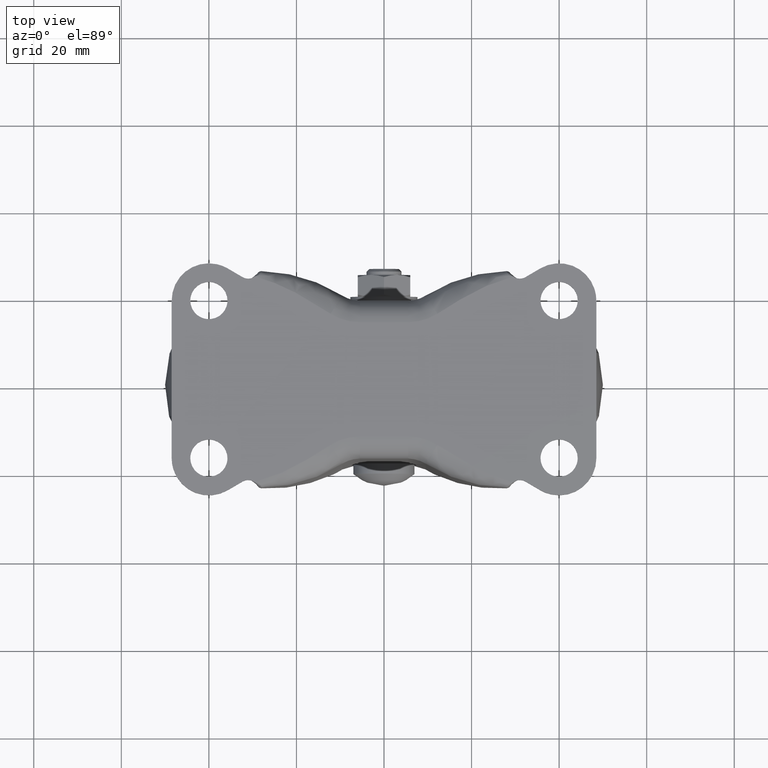
[diagram: clean part render]
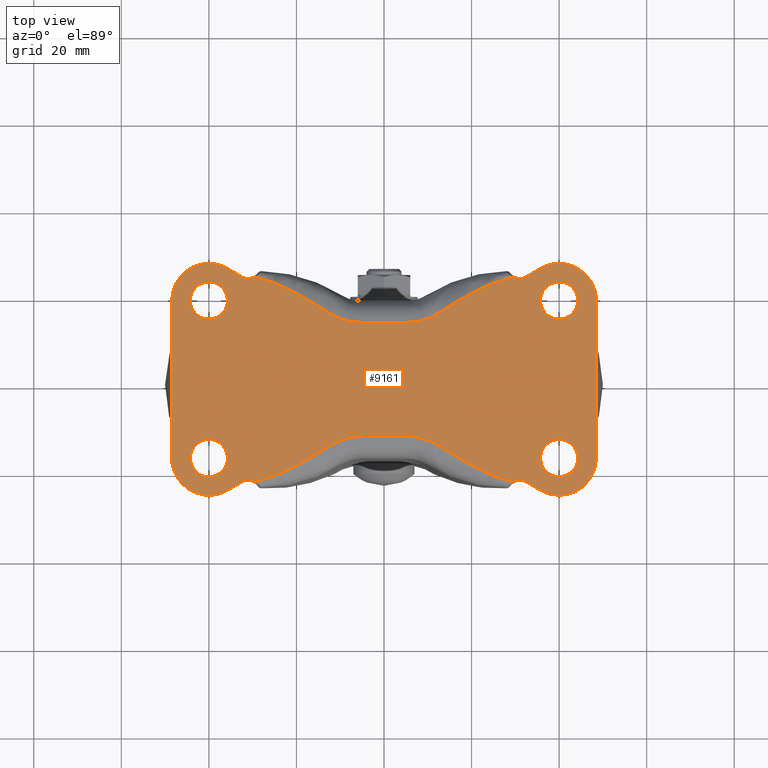
[diagram: same view with one face highlighted and labeled with its STEP entity id]
A machine part, top view. The second image highlights one B-rep face of the part: STEP entity #9161.
In plain terms, the highlighted face is a freeform B-spline surface patch.
Its self-contained STEP definition (entity closure, byte-faithful):
#4242=CARTESIAN_POINT('',(-40.501645497418238,13.779709512969511,0.0));
#4243=VERTEX_POINT('',#4242);
#4249=CARTESIAN_POINT('',(-35.750000000000007,18.0,0.0));
#4250=VERTEX_POINT('',#4249);
#4251=CARTESIAN_POINT('',(-40.501645497418238,13.779709512969513,0.0));
#4252=CARTESIAN_POINT('',(-40.251702508648968,13.750000000000002,0.0));
#4253=CARTESIAN_POINT('',(-40.0,13.750000000000000,0.0));
#4254=CARTESIAN_POINT('',(-35.750000000000007,13.750000000000000,0.0));
#4255=CARTESIAN_POINT('',(-35.750000000000007,18.0,0.0));
#4263=(BOUNDED_CURVE()B_SPLINE_CURVE(2,(#4251,#4252,#4253,#4254,#4255),.UNSPECIFIED.,.F.,.U.)B_SPLINE_CURVE_WITH_KNOTS((3,2,3),(0.229562473505471,0.250000000000000,0.500000000000000),.UNSPECIFIED.)CURVE()GEOMETRIC_REPRESENTATION_ITEM()RATIONAL_B_SPLINE_CURVE((0.956026754167947,0.976055948321729,1.0,0.707106781186548,1.0))REPRESENTATION_ITEM(''));
#4264=EDGE_CURVE('',#4243,#4250,#4263,.T.);
#4266=CARTESIAN_POINT('',(-39.740550154560452,22.242073287634209,-1.318390E-016));
#4267=VERTEX_POINT('',#4266);
#4268=CARTESIAN_POINT('',(-35.750000000000007,18.0,0.0));
#4269=CARTESIAN_POINT('',(-35.750000000000007,21.998006872323408,0.0));
#4270=CARTESIAN_POINT('',(-39.740550154560452,22.242073287634209,-1.318390E-016));
#4278=(BOUNDED_CURVE()B_SPLINE_CURVE(2,(#4268,#4269,#4270),.UNSPECIFIED.,.F.,.U.)B_SPLINE_CURVE_WITH_KNOTS((3,3),(0.500000000000000,0.739333224498204),.UNSPECIFIED.)CURVE()GEOMETRIC_REPRESENTATION_ITEM()RATIONAL_B_SPLINE_CURVE((1.0,0.719603686030873,0.976072603738882))REPRESENTATION_ITEM(''));
#4279=EDGE_CURVE('',#4250,#4267,#4278,.T.);
#4353=CARTESIAN_POINT('',(-44.250000000000000,18.0,0.0));
#4354=VERTEX_POINT('',#4353);
#4355=CARTESIAN_POINT('',(-39.740550154560445,22.242073287634206,-1.318390E-016));
#4356=CARTESIAN_POINT('',(-39.870153988811609,22.250000000000004,0.0));
#4357=CARTESIAN_POINT('',(-40.0,22.250000000000000,0.0));
#4358=CARTESIAN_POINT('',(-44.250000000000000,22.249999999999996,0.0));
#4359=CARTESIAN_POINT('',(-44.250000000000000,18.0,0.0));
#4367=(BOUNDED_CURVE()B_SPLINE_CURVE(2,(#4355,#4356,#4357,#4358,#4359),.UNSPECIFIED.,.F.,.U.)B_SPLINE_CURVE_WITH_KNOTS((3,2,3),(0.739333224498204,0.750000000000000,1.0),.UNSPECIFIED.)CURVE()GEOMETRIC_REPRESENTATION_ITEM()RATIONAL_B_SPLINE_CURVE((0.976072603738882,0.987503095155674,1.0,0.707106781186548,1.0))REPRESENTATION_ITEM(''));
#4368=EDGE_CURVE('',#4267,#4354,#4367,.T.);
#4370=CARTESIAN_POINT('',(-44.250000000000000,18.0,0.0));
#4371=CARTESIAN_POINT('',(-44.250000000000007,14.225258264935501,0.0));
#4372=CARTESIAN_POINT('',(-40.501645497418238,13.779709512969513,0.0));
#4380=(BOUNDED_CURVE()B_SPLINE_CURVE(2,(#4370,#4371,#4372),.UNSPECIFIED.,.F.,.U.)B_SPLINE_CURVE_WITH_KNOTS((3,3),(0.0,0.229562473505471),.UNSPECIFIED.)CURVE()GEOMETRIC_REPRESENTATION_ITEM()RATIONAL_B_SPLINE_CURVE((1.0,0.731050832864818,0.956026754167947))REPRESENTATION_ITEM(''));
#4381=EDGE_CURVE('',#4354,#4243,#4380,.T.);
#4432=CARTESIAN_POINT('',(-40.501645497418238,-22.220290487030478,0.0));
#4433=VERTEX_POINT('',#4432);
#4439=CARTESIAN_POINT('',(-35.750000000000007,-18.0,0.0));
#4440=VERTEX_POINT('',#4439);
#4441=CARTESIAN_POINT('',(-40.501645497418238,-22.220290487030478,0.0));
#4442=CARTESIAN_POINT('',(-40.251702508648982,-22.249999999999993,0.0));
#4443=CARTESIAN_POINT('',(-40.0,-22.250000000000000,0.0));
#4444=CARTESIAN_POINT('',(-35.750000000000007,-22.249999999999996,0.0));
#4445=CARTESIAN_POINT('',(-35.750000000000007,-18.0,0.0));
#4453=(BOUNDED_CURVE()B_SPLINE_CURVE(2,(#4441,#4442,#4443,#4444,#4445),.UNSPECIFIED.,.F.,.U.)B_SPLINE_CURVE_WITH_KNOTS((3,2,3),(0.229562473505471,0.250000000000000,0.500000000000000),.UNSPECIFIED.)CURVE()GEOMETRIC_REPRESENTATION_ITEM()RATIONAL_B_SPLINE_CURVE((0.956026754167947,0.976055948321729,1.0,0.707106781186548,1.0))REPRESENTATION_ITEM(''));
#4454=EDGE_CURVE('',#4433,#4440,#4453,.T.);
#4456=CARTESIAN_POINT('',(-39.740550154560452,-13.757926712365791,-1.318390E-016));
#4457=VERTEX_POINT('',#4456);
#4458=CARTESIAN_POINT('',(-35.750000000000007,-18.0,0.0));
#4459=CARTESIAN_POINT('',(-35.750000000000007,-14.001993127676601,0.0));
#4460=CARTESIAN_POINT('',(-39.740550154560452,-13.757926712365796,-1.318390E-016));
#4468=(BOUNDED_CURVE()B_SPLINE_CURVE(2,(#4458,#4459,#4460),.UNSPECIFIED.,.F.,.U.)B_SPLINE_CURVE_WITH_KNOTS((3,3),(0.500000000000000,0.739333224498204),.UNSPECIFIED.)CURVE()GEOMETRIC_REPRESENTATION_ITEM()RATIONAL_B_SPLINE_CURVE((1.0,0.719603686030873,0.976072603738882))REPRESENTATION_ITEM(''));
#4469=EDGE_CURVE('',#4440,#4457,#4468,.T.);
#4543=CARTESIAN_POINT('',(-44.250000000000000,-18.0,0.0));
#4544=VERTEX_POINT('',#4543);
#4545=CARTESIAN_POINT('',(-39.740550154560445,-13.757926712365798,-1.318390E-016));
#4546=CARTESIAN_POINT('',(-39.870153988811609,-13.750000000000002,0.0));
#4547=CARTESIAN_POINT('',(-40.0,-13.750000000000000,0.0));
#4548=CARTESIAN_POINT('',(-44.250000000000000,-13.750000000000000,0.0));
#4549=CARTESIAN_POINT('',(-44.250000000000000,-18.0,0.0));
#4557=(BOUNDED_CURVE()B_SPLINE_CURVE(2,(#4545,#4546,#4547,#4548,#4549),.UNSPECIFIED.,.F.,.U.)B_SPLINE_CURVE_WITH_KNOTS((3,2,3),(0.739333224498204,0.750000000000000,1.0),.UNSPECIFIED.)CURVE()GEOMETRIC_REPRESENTATION_ITEM()RATIONAL_B_SPLINE_CURVE((0.976072603738882,0.987503095155674,1.0,0.707106781186548,1.0))REPRESENTATION_ITEM(''));
#4558=EDGE_CURVE('',#4457,#4544,#4557,.T.);
#4560=CARTESIAN_POINT('',(-44.250000000000000,-18.0,0.0));
#4561=CARTESIAN_POINT('',(-44.250000000000007,-21.774741735064495,0.0));
#4562=CARTESIAN_POINT('',(-40.501645497418238,-22.220290487030478,0.0));
#4570=(BOUNDED_CURVE()B_SPLINE_CURVE(2,(#4560,#4561,#4562),.UNSPECIFIED.,.F.,.U.)B_SPLINE_CURVE_WITH_KNOTS((3,3),(0.0,0.229562473505471),.UNSPECIFIED.)CURVE()GEOMETRIC_REPRESENTATION_ITEM()RATIONAL_B_SPLINE_CURVE((1.0,0.731050832864818,0.956026754167947))REPRESENTATION_ITEM(''));
#4571=EDGE_CURVE('',#4544,#4433,#4570,.T.);
#4622=CARTESIAN_POINT('',(39.498354502581762,13.779709512969511,0.0));
#4623=VERTEX_POINT('',#4622);
#4629=CARTESIAN_POINT('',(44.250000000000000,18.0,0.0));
#4630=VERTEX_POINT('',#4629);
#4631=CARTESIAN_POINT('',(39.498354502581762,13.779709512969513,0.0));
#4632=CARTESIAN_POINT('',(39.748297491351018,13.750000000000002,0.0));
#4633=CARTESIAN_POINT('',(40.0,13.750000000000000,0.0));
#4634=CARTESIAN_POINT('',(44.250000000000000,13.750000000000000,0.0));
#4635=CARTESIAN_POINT('',(44.250000000000000,18.0,0.0));
#4643=(BOUNDED_CURVE()B_SPLINE_CURVE(2,(#4631,#4632,#4633,#4634,#4635),.UNSPECIFIED.,.F.,.U.)B_SPLINE_CURVE_WITH_KNOTS((3,2,3),(0.229562473505471,0.250000000000000,0.500000000000000),.UNSPECIFIED.)CURVE()GEOMETRIC_REPRESENTATION_ITEM()RATIONAL_B_SPLINE_CURVE((0.956026754167947,0.976055948321729,1.0,0.707106781186548,1.0))REPRESENTATION_ITEM(''));
#4644=EDGE_CURVE('',#4623,#4630,#4643,.T.);
#4646=CARTESIAN_POINT('',(40.259449845439548,22.242073287634209,-2.636780E-016));
#4647=VERTEX_POINT('',#4646);
#4648=CARTESIAN_POINT('',(44.250000000000000,18.0,0.0));
#4649=CARTESIAN_POINT('',(44.250000000000000,21.998006872323408,0.0));
#4650=CARTESIAN_POINT('',(40.259449845439548,22.242073287634209,-2.636780E-016));
#4658=(BOUNDED_CURVE()B_SPLINE_CURVE(2,(#4648,#4649,#4650),.UNSPECIFIED.,.F.,.U.)B_SPLINE_CURVE_WITH_KNOTS((3,3),(0.500000000000000,0.739333224498204),.UNSPECIFIED.)CURVE()GEOMETRIC_REPRESENTATION_ITEM()RATIONAL_B_SPLINE_CURVE((1.0,0.719603686030873,0.976072603738882))REPRESENTATION_ITEM(''));
#4659=EDGE_CURVE('',#4630,#4647,#4658,.T.);
#4733=CARTESIAN_POINT('',(35.750000000000007,18.0,0.0));
#4734=VERTEX_POINT('',#4733);
#4735=CARTESIAN_POINT('',(40.259449845439541,22.242073287634209,-2.636780E-016));
#4736=CARTESIAN_POINT('',(40.129846011188391,22.250000000000000,0.0));
#4737=CARTESIAN_POINT('',(40.0,22.250000000000000,0.0));
#4738=CARTESIAN_POINT('',(35.750000000000007,22.249999999999996,0.0));
#4739=CARTESIAN_POINT('',(35.750000000000007,18.0,0.0));
#4747=(BOUNDED_CURVE()B_SPLINE_CURVE(2,(#4735,#4736,#4737,#4738,#4739),.UNSPECIFIED.,.F.,.U.)B_SPLINE_CURVE_WITH_KNOTS((3,2,3),(0.739333224498204,0.750000000000000,1.0),.UNSPECIFIED.)CURVE()GEOMETRIC_REPRESENTATION_ITEM()RATIONAL_B_SPLINE_CURVE((0.976072603738881,0.987503095155674,1.0,0.707106781186548,1.0))REPRESENTATION_ITEM(''));
#4748=EDGE_CURVE('',#4647,#4734,#4747,.T.);
#4750=CARTESIAN_POINT('',(35.750000000000007,18.0,0.0));
#4751=CARTESIAN_POINT('',(35.750000000000014,14.225258264935501,0.0));
#4752=CARTESIAN_POINT('',(39.498354502581762,13.779709512969513,0.0));
#4760=(BOUNDED_CURVE()B_SPLINE_CURVE(2,(#4750,#4751,#4752),.UNSPECIFIED.,.F.,.U.)B_SPLINE_CURVE_WITH_KNOTS((3,3),(0.0,0.229562473505471),.UNSPECIFIED.)CURVE()GEOMETRIC_REPRESENTATION_ITEM()RATIONAL_B_SPLINE_CURVE((1.0,0.731050832864818,0.956026754167947))REPRESENTATION_ITEM(''));
#4761=EDGE_CURVE('',#4734,#4623,#4760,.T.);
#4812=CARTESIAN_POINT('',(39.498354502581762,-22.220290487030478,0.0));
#4813=VERTEX_POINT('',#4812);
#4819=CARTESIAN_POINT('',(44.250000000000000,-18.0,0.0));
#4820=VERTEX_POINT('',#4819);
#4821=CARTESIAN_POINT('',(39.498354502581762,-22.220290487030478,0.0));
#4822=CARTESIAN_POINT('',(39.748297491351018,-22.250000000000004,0.0));
#4823=CARTESIAN_POINT('',(40.0,-22.250000000000000,0.0));
#4824=CARTESIAN_POINT('',(44.250000000000000,-22.249999999999996,0.0));
#4825=CARTESIAN_POINT('',(44.250000000000000,-18.0,0.0));
#4833=(BOUNDED_CURVE()B_SPLINE_CURVE(2,(#4821,#4822,#4823,#4824,#4825),.UNSPECIFIED.,.F.,.U.)B_SPLINE_CURVE_WITH_KNOTS((3,2,3),(0.229562473505471,0.250000000000000,0.500000000000000),.UNSPECIFIED.)CURVE()GEOMETRIC_REPRESENTATION_ITEM()RATIONAL_B_SPLINE_CURVE((0.956026754167947,0.976055948321729,1.0,0.707106781186548,1.0))REPRESENTATION_ITEM(''));
#4834=EDGE_CURVE('',#4813,#4820,#4833,.T.);
#4836=CARTESIAN_POINT('',(40.259449845439548,-13.757926712365791,-2.636780E-016));
#4837=VERTEX_POINT('',#4836);
#4838=CARTESIAN_POINT('',(44.250000000000000,-18.0,0.0));
#4839=CARTESIAN_POINT('',(44.250000000000000,-14.001993127676601,0.0));
#4840=CARTESIAN_POINT('',(40.259449845439548,-13.757926712365796,-2.636780E-016));
#4848=(BOUNDED_CURVE()B_SPLINE_CURVE(2,(#4838,#4839,#4840),.UNSPECIFIED.,.F.,.U.)B_SPLINE_CURVE_WITH_KNOTS((3,3),(0.500000000000000,0.739333224498204),.UNSPECIFIED.)CURVE()GEOMETRIC_REPRESENTATION_ITEM()RATIONAL_B_SPLINE_CURVE((1.0,0.719603686030873,0.976072603738882))REPRESENTATION_ITEM(''));
#4849=EDGE_CURVE('',#4820,#4837,#4848,.T.);
#4923=CARTESIAN_POINT('',(35.750000000000007,-18.0,0.0));
#4924=VERTEX_POINT('',#4923);
#4925=CARTESIAN_POINT('',(40.259449845439541,-13.757926712365800,-2.636780E-016));
#4926=CARTESIAN_POINT('',(40.129846011188391,-13.749999999999998,0.0));
#4927=CARTESIAN_POINT('',(40.0,-13.750000000000000,0.0));
#4928=CARTESIAN_POINT('',(35.750000000000007,-13.750000000000000,0.0));
#4929=CARTESIAN_POINT('',(35.750000000000007,-18.0,0.0));
#4937=(BOUNDED_CURVE()B_SPLINE_CURVE(2,(#4925,#4926,#4927,#4928,#4929),.UNSPECIFIED.,.F.,.U.)B_SPLINE_CURVE_WITH_KNOTS((3,2,3),(0.739333224498204,0.750000000000000,1.0),.UNSPECIFIED.)CURVE()GEOMETRIC_REPRESENTATION_ITEM()RATIONAL_B_SPLINE_CURVE((0.976072603738881,0.987503095155674,1.0,0.707106781186548,1.0))REPRESENTATION_ITEM(''));
#4938=EDGE_CURVE('',#4837,#4924,#4937,.T.);
#4940=CARTESIAN_POINT('',(35.750000000000007,-18.0,0.0));
#4941=CARTESIAN_POINT('',(35.750000000000014,-21.774741735064495,0.0));
#4942=CARTESIAN_POINT('',(39.498354502581762,-22.220290487030478,0.0));
#4950=(BOUNDED_CURVE()B_SPLINE_CURVE(2,(#4940,#4941,#4942),.UNSPECIFIED.,.F.,.U.)B_SPLINE_CURVE_WITH_KNOTS((3,3),(0.0,0.229562473505471),.UNSPECIFIED.)CURVE()GEOMETRIC_REPRESENTATION_ITEM()RATIONAL_B_SPLINE_CURVE((1.0,0.731050832864818,0.956026754167947))REPRESENTATION_ITEM(''));
#4951=EDGE_CURVE('',#4924,#4813,#4950,.T.);
#6364=CARTESIAN_POINT('',(29.574334067903401,23.475637317187552,0.0));
#6365=VERTEX_POINT('',#6364);
#6496=CARTESIAN_POINT('',(-29.574334339008299,23.475637120731449,0.0));
#6497=VERTEX_POINT('',#6496);
#6659=CARTESIAN_POINT('',(-12.193367883073780,14.980134335810900,0.0));
#6660=VERTEX_POINT('',#6659);
#6661=CARTESIAN_POINT('',(-12.193367883073780,14.980134335810900,0.0));
#6662=CARTESIAN_POINT('',(-15.517711507151450,17.078858172320100,0.0));
#6663=CARTESIAN_POINT('',(-16.070298353085249,17.418407956595601,0.0));
#6664=CARTESIAN_POINT('',(-18.322508834534400,18.802330843552401,0.0));
#6665=CARTESIAN_POINT('',(-20.167636069263100,19.784897384909250,0.0));
#6666=CARTESIAN_POINT('',(-25.016467062521350,22.366995252740150,0.0));
#6667=CARTESIAN_POINT('',(-29.574334339008299,23.475637120731449,0.0));
#6668=B_SPLINE_CURVE_WITH_KNOTS('',2,(#6661,#6662,#6663,#6664,#6665,#6666,#6667),.UNSPECIFIED.,.F.,.U.,(3,2,2,3),(0.0,0.250000000000000,0.500000000000000,1.0),.UNSPECIFIED.);
#6669=EDGE_CURVE('',#6660,#6497,#6668,.T.);
#6704=CARTESIAN_POINT('',(-5.520442000000000,13.050000000000001,0.0));
#6705=VERTEX_POINT('',#6704);
#6735=CARTESIAN_POINT('',(-5.520442000000000,13.050000000000001,0.0));
#6736=CARTESIAN_POINT('',(-9.136049249412832,13.049999999999999,0.0));
#6737=CARTESIAN_POINT('',(-12.193367883073790,14.980134335810890,0.0));
#6745=(BOUNDED_CURVE()B_SPLINE_CURVE(2,(#6735,#6736,#6737),.UNSPECIFIED.,.F.,.U.)CURVE()GEOMETRIC_REPRESENTATION_ITEM()QUASI_UNIFORM_CURVE()RATIONAL_B_SPLINE_CURVE((1.0,0.960621999835297,1.0))REPRESENTATION_ITEM(''));
#6746=EDGE_CURVE('',#6705,#6660,#6745,.T.);
#6765=CARTESIAN_POINT('',(5.520442000000000,13.050000000000001,0.0));
#6766=VERTEX_POINT('',#6765);
#6788=CARTESIAN_POINT('',(5.520442000000000,13.050000000000001,0.0));
#6789=CARTESIAN_POINT('',(-5.520442000000000,13.050000000000001,0.0));
#6790=QUASI_UNIFORM_CURVE('',1,(#6788,#6789),.UNSPECIFIED.,.F.,.U.);
#6791=EDGE_CURVE('',#6766,#6705,#6790,.T.);
#6813=CARTESIAN_POINT('',(12.193367392894160,14.980134026352641,0.0));
#6814=VERTEX_POINT('',#6813);
#6844=CARTESIAN_POINT('',(12.193367392894160,14.980134026352641,0.0));
#6845=CARTESIAN_POINT('',(9.136048935318035,13.049999999999995,0.0));
#6846=CARTESIAN_POINT('',(5.520442000000000,13.050000000000001,0.0));
#6854=(BOUNDED_CURVE()B_SPLINE_CURVE(2,(#6844,#6845,#6846),.UNSPECIFIED.,.F.,.U.)CURVE()GEOMETRIC_REPRESENTATION_ITEM()QUASI_UNIFORM_CURVE()RATIONAL_B_SPLINE_CURVE((1.0,0.960622006278169,1.0))REPRESENTATION_ITEM(''));
#6855=EDGE_CURVE('',#6814,#6766,#6854,.T.);
#6898=CARTESIAN_POINT('',(29.574334067903401,23.475637317187552,0.0));
#6899=CARTESIAN_POINT('',(25.017140416921649,22.367159380681400,0.0));
#6900=CARTESIAN_POINT('',(20.167635503310649,19.784897591607351,0.0));
#6901=CARTESIAN_POINT('',(18.323950421625749,18.803173142961398,0.0));
#6902=CARTESIAN_POINT('',(16.070297676667849,17.418408126779251,0.0));
#6903=CARTESIAN_POINT('',(15.518352345080800,17.079263337176300,0.0));
#6904=CARTESIAN_POINT('',(12.193367392894160,14.980134026352641,0.0));
#6905=B_SPLINE_CURVE_WITH_KNOTS('',2,(#6898,#6899,#6900,#6901,#6902,#6903,#6904),.UNSPECIFIED.,.F.,.U.,(3,2,2,3),(0.0,0.500000000000000,0.750000000000000,1.0),.UNSPECIFIED.);
#6906=EDGE_CURVE('',#6365,#6814,#6905,.T.);
#7000=CARTESIAN_POINT('',(-29.574334346053799,-23.475637115625950,0.0));
#7001=VERTEX_POINT('',#7000);
#7132=CARTESIAN_POINT('',(29.574334369345099,-23.475637098747900,0.0));
#7133=VERTEX_POINT('',#7132);
#7288=CARTESIAN_POINT('',(-12.193367492635840,-14.980134089321160,0.0));
#7289=VERTEX_POINT('',#7288);
#7290=CARTESIAN_POINT('',(-29.574334346053799,-23.475637115625950,0.0));
#7291=CARTESIAN_POINT('',(-25.017140722793251,-22.367159138904150,0.0));
#7292=CARTESIAN_POINT('',(-20.167635841933699,-19.784897320597199,0.0));
#7293=CARTESIAN_POINT('',(-18.323950713011001,-18.803172829054152,0.0));
#7294=CARTESIAN_POINT('',(-16.070298034659601,-17.418407815526798,0.0));
#7295=CARTESIAN_POINT('',(-15.518351219538150,-17.079262104987549,0.0));
#7296=CARTESIAN_POINT('',(-12.193367492635840,-14.980134089321160,0.0));
#7297=B_SPLINE_CURVE_WITH_KNOTS('',2,(#7290,#7291,#7292,#7293,#7294,#7295,#7296),.UNSPECIFIED.,.F.,.U.,(3,2,2,3),(0.0,0.500000000000000,0.750000000000000,1.0),.UNSPECIFIED.);
#7298=EDGE_CURVE('',#7001,#7289,#7297,.T.);
#7364=CARTESIAN_POINT('',(-5.520442000000000,-13.050000000000001,0.0));
#7365=VERTEX_POINT('',#7364);
#7379=CARTESIAN_POINT('',(-12.193367492635851,-14.980134089321160,0.0));
#7380=CARTESIAN_POINT('',(-9.136048999230006,-13.049999999999997,0.0));
#7381=CARTESIAN_POINT('',(-5.520442000000000,-13.050000000000001,0.0));
#7389=(BOUNDED_CURVE()B_SPLINE_CURVE(2,(#7379,#7380,#7381),.UNSPECIFIED.,.F.,.U.)CURVE()GEOMETRIC_REPRESENTATION_ITEM()QUASI_UNIFORM_CURVE()RATIONAL_B_SPLINE_CURVE((1.0,0.960622004967174,1.0))REPRESENTATION_ITEM(''));
#7390=EDGE_CURVE('',#7289,#7365,#7389,.T.);
#7425=CARTESIAN_POINT('',(5.520442000000000,-13.050000000000001,0.0));
#7426=VERTEX_POINT('',#7425);
#7440=CARTESIAN_POINT('',(-5.520442000000000,-13.050000000000001,0.0));
#7441=CARTESIAN_POINT('',(5.520442000000000,-13.050000000000001,0.0));
#7442=QUASI_UNIFORM_CURVE('',1,(#7440,#7441),.UNSPECIFIED.,.F.,.U.);
#7443=EDGE_CURVE('',#7365,#7426,#7442,.T.);
#7473=CARTESIAN_POINT('',(12.193367168052699,-14.980133884406641,0.0));
#7474=VERTEX_POINT('',#7473);
#7488=CARTESIAN_POINT('',(5.520442000000000,-13.050000000000001,0.0));
#7489=CARTESIAN_POINT('',(9.136048791245283,-13.050000000000004,0.0));
#7490=CARTESIAN_POINT('',(12.193367168052710,-14.980133884406630,0.0));
#7498=(BOUNDED_CURVE()B_SPLINE_CURVE(2,(#7488,#7489,#7490),.UNSPECIFIED.,.F.,.U.)CURVE()GEOMETRIC_REPRESENTATION_ITEM()QUASI_UNIFORM_CURVE()RATIONAL_B_SPLINE_CURVE((1.0,0.960622009233463,1.0))REPRESENTATION_ITEM(''));
#7499=EDGE_CURVE('',#7426,#7474,#7498,.T.);
#7582=CARTESIAN_POINT('',(12.193367168052699,-14.980133884406641,0.0));
#7583=CARTESIAN_POINT('',(15.517709009082649,-17.078857226486001,0.0));
#7584=CARTESIAN_POINT('',(16.070297565310501,-17.418408051078501,0.0));
#7585=CARTESIAN_POINT('',(18.322508117209601,-18.802330938070050,0.0));
#7586=CARTESIAN_POINT('',(20.167635528936248,-19.784897513501949,0.0));
#7587=CARTESIAN_POINT('',(25.016466774223300,-22.366995357395851,0.0));
#7588=CARTESIAN_POINT('',(29.574334369345099,-23.475637098747900,0.0));
#7589=B_SPLINE_CURVE_WITH_KNOTS('',2,(#7582,#7583,#7584,#7585,#7586,#7587,#7588),.UNSPECIFIED.,.F.,.U.,(3,2,2,3),(0.0,0.250000000000000,0.500000000000000,1.0),.UNSPECIFIED.);
#7590=EDGE_CURVE('',#7474,#7133,#7589,.T.);
#8954=CARTESIAN_POINT('',(-53.345149811995192,-29.143085226938300,0.0));
#8955=CARTESIAN_POINT('',(53.345152413737907,-29.143085226938300,0.0));
#8956=CARTESIAN_POINT('',(-53.345149811995178,29.143086174648641,0.0));
#8957=CARTESIAN_POINT('',(53.345152413737907,29.143086174648641,0.0));
#8958=B_SPLINE_SURFACE_WITH_KNOTS('',1,1,((#8954,#8956),(#8955,#8957)),.UNSPECIFIED.,.F.,.F.,.U.,(2,2),(2,2),(0.0,106.690302225733110),(0.0,58.286171401586941),.UNSPECIFIED.);
#8959=ORIENTED_EDGE('',*,*,#6746,.T.);
#8960=ORIENTED_EDGE('',*,*,#6669,.T.);
#8961=CARTESIAN_POINT('',(-32.305132000000100,23.342988999999999,0.0));
#8962=VERTEX_POINT('',#8961);
#8963=CARTESIAN_POINT('',(-29.574334339008310,23.475637120731459,0.0));
#8964=CARTESIAN_POINT('',(-30.896417839628498,22.517589899438732,0.0));
#8965=CARTESIAN_POINT('',(-32.305132000000057,23.342989000000081,0.0));
#8973=(BOUNDED_CURVE()B_SPLINE_CURVE(2,(#8963,#8964,#8965),.UNSPECIFIED.,.F.,.U.)CURVE()GEOMETRIC_REPRESENTATION_ITEM()QUASI_UNIFORM_CURVE()RATIONAL_B_SPLINE_CURVE((1.0,0.837260923510451,1.0))REPRESENTATION_ITEM(''));
#8974=EDGE_CURVE('',#6497,#8962,#8973,.T.);
#8975=ORIENTED_EDGE('',*,*,#8974,.T.);
#8976=CARTESIAN_POINT('',(-35.702931740090001,25.333839433636051,0.0));
#8977=VERTEX_POINT('',#8976);
#8978=CARTESIAN_POINT('',(-35.702931740090001,25.333839433636051,0.0));
#8979=CARTESIAN_POINT('',(-32.305132000000100,23.342988999999999,0.0));
#8980=QUASI_UNIFORM_CURVE('',1,(#8978,#8979),.UNSPECIFIED.,.F.,.U.);
#8981=EDGE_CURVE('',#8977,#8962,#8980,.T.);
#8982=ORIENTED_EDGE('',*,*,#8981,.F.);
#8983=CARTESIAN_POINT('',(-48.500000000000000,18.0,0.0));
#8984=VERTEX_POINT('',#8983);
#8985=CARTESIAN_POINT('',(-48.500000000000000,18.0,0.0));
#8986=CARTESIAN_POINT('',(-48.499999792275396,22.925644291653487,0.0));
#8987=CARTESIAN_POINT('',(-44.226400191182407,25.374790701616892,0.0));
#8988=CARTESIAN_POINT('',(-39.952800590089431,27.823937111580285,0.0));
#8989=CARTESIAN_POINT('',(-35.702931740089987,25.333839433636079,0.0));
#8997=(BOUNDED_CURVE()B_SPLINE_CURVE(2,(#8985,#8986,#8987,#8988,#8989),.UNSPECIFIED.,.F.,.U.)B_SPLINE_CURVE_WITH_KNOTS((3,2,3),(0.0,0.500000000000000,1.0),.UNSPECIFIED.)CURVE()GEOMETRIC_REPRESENTATION_ITEM()RATIONAL_B_SPLINE_CURVE((1.0,0.865223544540674,1.0,0.865223544540674,1.0))REPRESENTATION_ITEM(''));
#8998=EDGE_CURVE('',#8984,#8977,#8997,.T.);
#8999=ORIENTED_EDGE('',*,*,#8998,.F.);
#9000=CARTESIAN_POINT('',(-48.499999792275503,-18.0,0.0));
#9001=VERTEX_POINT('',#9000);
#9002=CARTESIAN_POINT('',(-48.499999792275503,-18.0,0.0));
#9003=CARTESIAN_POINT('',(-48.500000000000000,18.0,0.0));
#9004=QUASI_UNIFORM_CURVE('',1,(#9002,#9003),.UNSPECIFIED.,.F.,.U.);
#9005=EDGE_CURVE('',#9001,#8984,#9004,.T.);
#9006=ORIENTED_EDGE('',*,*,#9005,.F.);
#9007=CARTESIAN_POINT('',(-35.702931000000099,-25.333839000000001,0.0));
#9008=VERTEX_POINT('',#9007);
#9009=CARTESIAN_POINT('',(-35.702931000000078,-25.333839000000030,0.0));
#9010=CARTESIAN_POINT('',(-39.952799845866913,-27.823937251630554,0.0));
#9011=CARTESIAN_POINT('',(-44.226399819071148,-25.374790914869180,0.0));
#9012=CARTESIAN_POINT('',(-48.499999792275403,-22.925644578107814,0.0));
#9013=CARTESIAN_POINT('',(-48.499999792275403,-18.0,0.0));
#9021=(BOUNDED_CURVE()B_SPLINE_CURVE(2,(#9009,#9010,#9011,#9012,#9013),.UNSPECIFIED.,.F.,.U.)B_SPLINE_CURVE_WITH_KNOTS((3,2,3),(0.0,0.500000000000000,1.0),.UNSPECIFIED.)CURVE()GEOMETRIC_REPRESENTATION_ITEM()RATIONAL_B_SPLINE_CURVE((1.0,0.865223531891401,1.0,0.865223531891401,1.0))REPRESENTATION_ITEM(''));
#9022=EDGE_CURVE('',#9008,#9001,#9021,.T.);
#9023=ORIENTED_EDGE('',*,*,#9022,.F.);
#9024=CARTESIAN_POINT('',(-32.305132000000100,-23.342988999999999,0.0));
#9025=VERTEX_POINT('',#9024);
#9026=CARTESIAN_POINT('',(-32.305132000000100,-23.342988999999999,0.0));
#9027=CARTESIAN_POINT('',(-35.702931000000099,-25.333839000000001,0.0));
#9028=QUASI_UNIFORM_CURVE('',1,(#9026,#9027),.UNSPECIFIED.,.F.,.U.);
#9029=EDGE_CURVE('',#9025,#9008,#9028,.T.);
#9030=ORIENTED_EDGE('',*,*,#9029,.F.);
#9031=CARTESIAN_POINT('',(-32.305132000000057,-23.342989000000081,0.0));
#9032=CARTESIAN_POINT('',(-30.896417844983052,-22.517589902576102,0.0));
#9033=CARTESIAN_POINT('',(-29.574334346053799,-23.475637115625950,0.0));
#9041=(BOUNDED_CURVE()B_SPLINE_CURVE(2,(#9031,#9032,#9033),.UNSPECIFIED.,.F.,.U.)CURVE()GEOMETRIC_REPRESENTATION_ITEM()QUASI_UNIFORM_CURVE()RATIONAL_B_SPLINE_CURVE((1.0,0.837260924461985,1.0))REPRESENTATION_ITEM(''));
#9042=EDGE_CURVE('',#9025,#7001,#9041,.T.);
#9043=ORIENTED_EDGE('',*,*,#9042,.T.);
#9044=ORIENTED_EDGE('',*,*,#7298,.T.);
#9045=ORIENTED_EDGE('',*,*,#7390,.T.);
#9046=ORIENTED_EDGE('',*,*,#7443,.T.);
#9047=ORIENTED_EDGE('',*,*,#7499,.T.);
#9048=ORIENTED_EDGE('',*,*,#7590,.T.);
#9049=CARTESIAN_POINT('',(32.305132000000100,-23.342988999999999,0.0));
#9050=VERTEX_POINT('',#9049);
#9051=CARTESIAN_POINT('',(29.574334369345110,-23.475637098747910,0.0));
#9052=CARTESIAN_POINT('',(30.896417862684398,-22.517589912947745,0.0));
#9053=CARTESIAN_POINT('',(32.305132000000050,-23.342989000000081,0.0));
#9061=(BOUNDED_CURVE()B_SPLINE_CURVE(2,(#9051,#9052,#9053),.UNSPECIFIED.,.F.,.U.)CURVE()GEOMETRIC_REPRESENTATION_ITEM()QUASI_UNIFORM_CURVE()RATIONAL_B_SPLINE_CURVE((1.0,0.837260927607609,1.0))REPRESENTATION_ITEM(''));
#9062=EDGE_CURVE('',#7133,#9050,#9061,.T.);
#9063=ORIENTED_EDGE('',*,*,#9062,.T.);
#9064=CARTESIAN_POINT('',(35.702931740090001,-25.333839433636051,0.0));
#9065=VERTEX_POINT('',#9064);
#9066=CARTESIAN_POINT('',(35.702931740090001,-25.333839433636051,0.0));
#9067=CARTESIAN_POINT('',(32.305132000000100,-23.342988999999999,0.0));
#9068=QUASI_UNIFORM_CURVE('',1,(#9066,#9067),.UNSPECIFIED.,.F.,.U.);
#9069=EDGE_CURVE('',#9065,#9050,#9068,.T.);
#9070=ORIENTED_EDGE('',*,*,#9069,.F.);
#9071=CARTESIAN_POINT('',(48.500000000000000,-18.0,0.0));
#9072=VERTEX_POINT('',#9071);
#9073=CARTESIAN_POINT('',(48.500000000000000,-18.0,0.0));
#9074=CARTESIAN_POINT('',(48.499999792275389,-22.925644291653491,0.0));
#9075=CARTESIAN_POINT('',(44.226400191182407,-25.374790701616892,0.0));
#9076=CARTESIAN_POINT('',(39.952800590089431,-27.823937111580278,0.0));
#9077=CARTESIAN_POINT('',(35.702931740089987,-25.333839433636079,0.0));
#9085=(BOUNDED_CURVE()B_SPLINE_CURVE(2,(#9073,#9074,#9075,#9076,#9077),.UNSPECIFIED.,.F.,.U.)B_SPLINE_CURVE_WITH_KNOTS((3,2,3),(0.0,0.500000000000000,1.0),.UNSPECIFIED.)CURVE()GEOMETRIC_REPRESENTATION_ITEM()RATIONAL_B_SPLINE_CURVE((1.0,0.865223544540674,1.0,0.865223544540674,1.0))REPRESENTATION_ITEM(''));
#9086=EDGE_CURVE('',#9072,#9065,#9085,.T.);
#9087=ORIENTED_EDGE('',*,*,#9086,.F.);
#9088=CARTESIAN_POINT('',(48.499999792275503,18.0,0.0));
#9089=VERTEX_POINT('',#9088);
#9090=CARTESIAN_POINT('',(48.499999792275503,18.0,0.0));
#9091=CARTESIAN_POINT('',(48.500000000000000,-18.0,0.0));
#9092=QUASI_UNIFORM_CURVE('',1,(#9090,#9091),.UNSPECIFIED.,.F.,.U.);
#9093=EDGE_CURVE('',#9089,#9072,#9092,.T.);
#9094=ORIENTED_EDGE('',*,*,#9093,.F.);
#9095=CARTESIAN_POINT('',(35.702931000000099,25.333839000000001,0.0));
#9096=VERTEX_POINT('',#9095);
#9097=CARTESIAN_POINT('',(35.702931000000078,25.333839000000030,0.0));
#9098=CARTESIAN_POINT('',(39.952799845866906,27.823937251630550,0.0));
#9099=CARTESIAN_POINT('',(44.226399819071148,25.374790914869180,0.0));
#9100=CARTESIAN_POINT('',(48.499999792275396,22.925644578107821,0.0));
#9101=CARTESIAN_POINT('',(48.499999792275403,18.0,0.0));
#9109=(BOUNDED_CURVE()B_SPLINE_CURVE(2,(#9097,#9098,#9099,#9100,#9101),.UNSPECIFIED.,.F.,.U.)B_SPLINE_CURVE_WITH_KNOTS((3,2,3),(0.0,0.500000000000000,1.0),.UNSPECIFIED.)CURVE()GEOMETRIC_REPRESENTATION_ITEM()RATIONAL_B_SPLINE_CURVE((1.0,0.865223531891401,1.0,0.865223531891401,1.0))REPRESENTATION_ITEM(''));
#9110=EDGE_CURVE('',#9096,#9089,#9109,.T.);
#9111=ORIENTED_EDGE('',*,*,#9110,.F.);
#9112=CARTESIAN_POINT('',(32.305131445694897,23.342988675219601,0.0));
#9113=VERTEX_POINT('',#9112);
#9114=CARTESIAN_POINT('',(32.305131445694897,23.342988675219601,0.0));
#9115=CARTESIAN_POINT('',(35.702931000000099,25.333839000000001,0.0));
#9116=QUASI_UNIFORM_CURVE('',1,(#9114,#9115),.UNSPECIFIED.,.F.,.U.);
#9117=EDGE_CURVE('',#9113,#9096,#9116,.T.);
#9118=ORIENTED_EDGE('',*,*,#9117,.F.);
#9119=CARTESIAN_POINT('',(32.305131445694890,23.342988675219608,0.0));
#9120=CARTESIAN_POINT('',(30.896417262538662,22.517590047597277,0.0));
#9121=CARTESIAN_POINT('',(29.574334067903401,23.475637317187541,0.0));
#9129=(BOUNDED_CURVE()B_SPLINE_CURVE(2,(#9119,#9120,#9121),.UNSPECIFIED.,.F.,.U.)CURVE()GEOMETRIC_REPRESENTATION_ITEM()QUASI_UNIFORM_CURVE()RATIONAL_B_SPLINE_CURVE((1.0,0.837260957154517,1.0))REPRESENTATION_ITEM(''));
#9130=EDGE_CURVE('',#9113,#6365,#9129,.T.);
#9131=ORIENTED_EDGE('',*,*,#9130,.T.);
#9132=ORIENTED_EDGE('',*,*,#6906,.T.);
#9133=ORIENTED_EDGE('',*,*,#6855,.T.);
#9134=ORIENTED_EDGE('',*,*,#6791,.T.);
#9135=EDGE_LOOP('',(#8959,#8960,#8975,#8982,#8999,#9006,#9023,#9030,#9043,#9044,#9045,#9046,#9047,#9048,#9063,#9070,#9087,#9094,#9111,#9118,#9131,#9132,#9133,#9134));
#9136=FACE_OUTER_BOUND('',#9135,.T.);
#9137=ORIENTED_EDGE('',*,*,#4849,.F.);
#9138=ORIENTED_EDGE('',*,*,#4834,.F.);
#9139=ORIENTED_EDGE('',*,*,#4951,.F.);
#9140=ORIENTED_EDGE('',*,*,#4938,.F.);
#9141=EDGE_LOOP('',(#9137,#9138,#9139,#9140));
#9142=FACE_BOUND('',#9141,.T.);
#9143=ORIENTED_EDGE('',*,*,#4659,.F.);
#9144=ORIENTED_EDGE('',*,*,#4644,.F.);
#9145=ORIENTED_EDGE('',*,*,#4761,.F.);
#9146=ORIENTED_EDGE('',*,*,#4748,.F.);
#9147=EDGE_LOOP('',(#9143,#9144,#9145,#9146));
#9148=FACE_BOUND('',#9147,.T.);
#9149=ORIENTED_EDGE('',*,*,#4469,.F.);
#9150=ORIENTED_EDGE('',*,*,#4454,.F.);
#9151=ORIENTED_EDGE('',*,*,#4571,.F.);
#9152=ORIENTED_EDGE('',*,*,#4558,.F.);
#9153=EDGE_LOOP('',(#9149,#9150,#9151,#9152));
#9154=FACE_BOUND('',#9153,.T.);
#9155=ORIENTED_EDGE('',*,*,#4279,.F.);
#9156=ORIENTED_EDGE('',*,*,#4264,.F.);
#9157=ORIENTED_EDGE('',*,*,#4381,.F.);
#9158=ORIENTED_EDGE('',*,*,#4368,.F.);
#9159=EDGE_LOOP('',(#9155,#9156,#9157,#9158));
#9160=FACE_BOUND('',#9159,.T.);
#9161=ADVANCED_FACE('',(#9136,#9142,#9148,#9154,#9160),#8958,.T.);